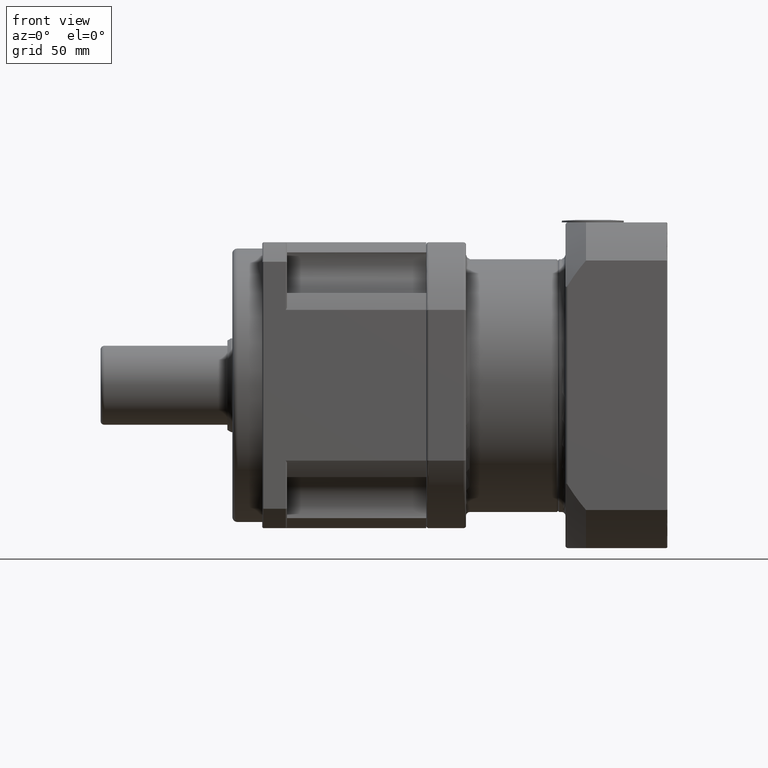
[diagram: clean part render]
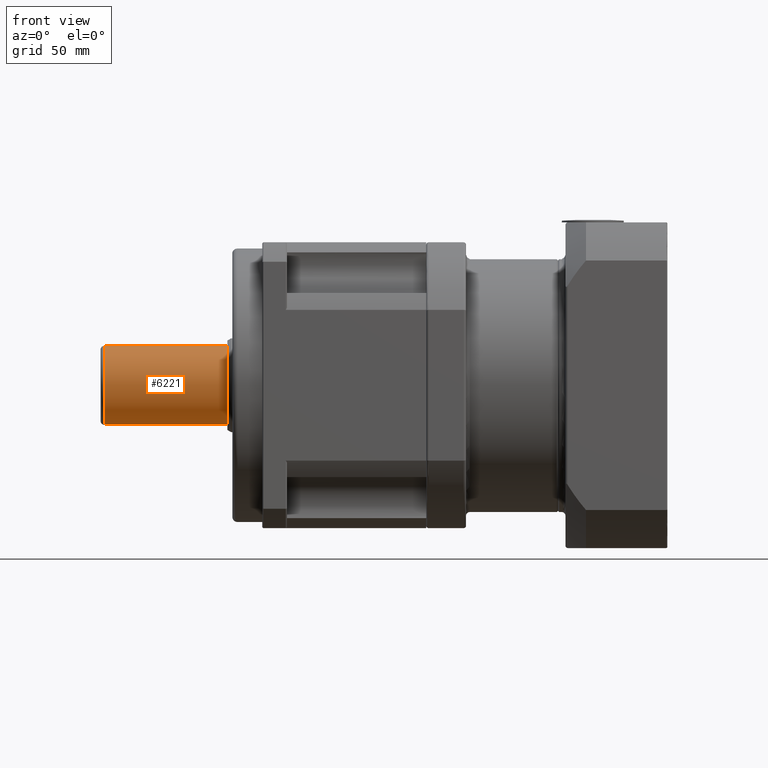
[diagram: same view with one face highlighted and labeled with its STEP entity id]
A machine part, front view. The second image highlights one B-rep face of the part: STEP entity #6221.
In plain terms, the highlighted cylindrical surface (bore or boss wall) has radius 16 mm, axis along (1, 0, -0).
Its self-contained STEP definition (entity closure, byte-faithful):
#1172=FACE_BOUND('',#1934,.T.);
#1419=FACE_OUTER_BOUND('',#1933,.T.);
#1933=EDGE_LOOP('',(#4401));
#1934=EDGE_LOOP('',(#4402));
#2502=CIRCLE('',#6788,16.);
#2504=CIRCLE('',#6791,16.);
#2865=VERTEX_POINT('',#9921);
#2867=VERTEX_POINT('',#9926);
#3466=EDGE_CURVE('',#2865,#2865,#2502,.T.);
#3468=EDGE_CURVE('',#2867,#2867,#2504,.T.);
#4401=ORIENTED_EDGE('',*,*,#3466,.F.);
#4402=ORIENTED_EDGE('',*,*,#3468,.F.);
#5725=CYLINDRICAL_SURFACE('',#6793,16.);
#6221=ADVANCED_FACE('',(#1419,#1172),#5725,.T.);
#6788=AXIS2_PLACEMENT_3D('',#9922,#7823,#7824);
#6791=AXIS2_PLACEMENT_3D('',#9927,#7829,#7830);
#6793=AXIS2_PLACEMENT_3D('',#9929,#7833,#7834);
#7823=DIRECTION('center_axis',(1.,1.82003774528714E-16,-7.70129826729421E-16));
#7824=DIRECTION('ref_axis',(-7.70129826729421E-16,-4.0442524736388E-31,
-1.));
#7829=DIRECTION('center_axis',(-1.,-1.82003774528714E-16,7.70129826729421E-16));
#7830=DIRECTION('ref_axis',(1.73472347597681E-16,-1.,1.83697019872103E-16));
#7833=DIRECTION('center_axis',(1.,1.82003774528714E-16,-7.70129826729421E-16));
#7834=DIRECTION('ref_axis',(-3.69778549322352E-32,1.,-4.0442524736388E-31));
#9921=CARTESIAN_POINT('',(-96.5513956068892,-107.244525766391,-104.9535040948));
#9922=CARTESIAN_POINT('Origin',(-96.5513956068892,-123.244525766391,-104.9535040948));
#9926=CARTESIAN_POINT('',(-146.051395606889,-107.244525766391,-104.9535040948));
#9927=CARTESIAN_POINT('Origin',(-146.051395606889,-123.244525766391,-104.9535040948));
#9929=CARTESIAN_POINT('Origin',(-122.051395606889,-123.244525766391,-104.9535040948));